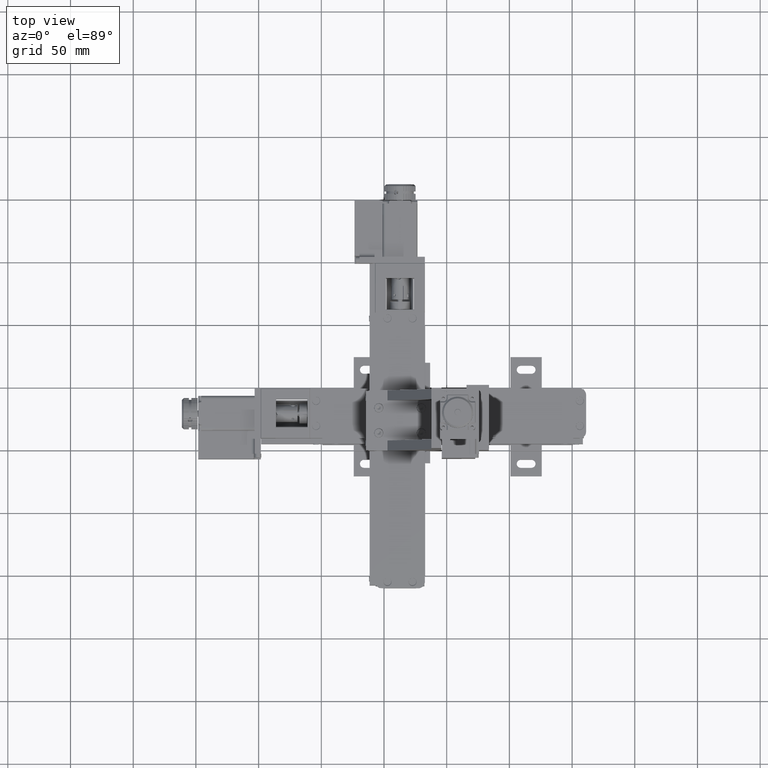
[diagram: clean part render]
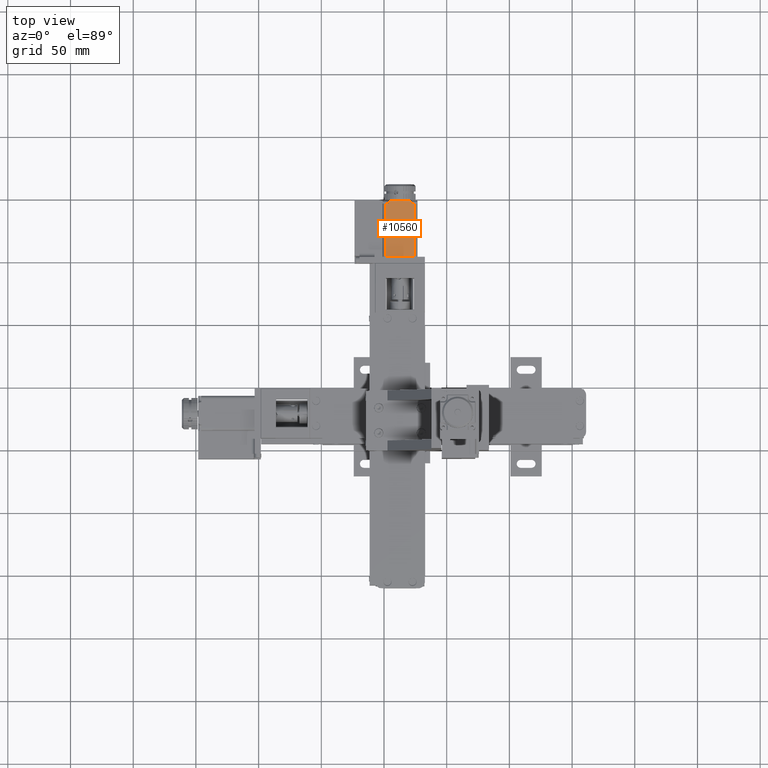
[diagram: same view with one face highlighted and labeled with its STEP entity id]
A machine part, top view. The second image highlights one B-rep face of the part: STEP entity #10560.
In plain terms, the highlighted planar face has unit normal (0, 0, 1).
Its self-contained STEP definition (entity closure, byte-faithful):
#4720=PLANE('',#124171);
#10560=ADVANCED_FACE('',(#17322),#4720,.T.);
#17322=FACE_OUTER_BOUND('',#24533,.T.);
#24533=EDGE_LOOP('',(#55692,#55693,#55694,#55695,#55696,#55697,#55698,#55699,
#55700,#55701));
#55692=ORIENTED_EDGE('',*,*,#80595,.F.);
#55693=ORIENTED_EDGE('',*,*,#80597,.T.);
#55694=ORIENTED_EDGE('',*,*,#80598,.T.);
#55695=ORIENTED_EDGE('',*,*,#80433,.F.);
#55696=ORIENTED_EDGE('',*,*,#80466,.T.);
#55697=ORIENTED_EDGE('',*,*,#80505,.F.);
#55698=ORIENTED_EDGE('',*,*,#80442,.F.);
#55699=ORIENTED_EDGE('',*,*,#80506,.F.);
#55700=ORIENTED_EDGE('',*,*,#80480,.T.);
#55701=ORIENTED_EDGE('',*,*,#80439,.F.);
#80433=EDGE_CURVE('',#114656,#114657,#95291,.T.);
#80439=EDGE_CURVE('',#114666,#114667,#95297,.T.);
#80442=EDGE_CURVE('',#114671,#114668,#95300,.T.);
#80466=EDGE_CURVE('',#114656,#114705,#95324,.T.);
#80480=EDGE_CURVE('',#114712,#114667,#95334,.T.);
#80505=EDGE_CURVE('',#114668,#114705,#95352,.T.);
#80506=EDGE_CURVE('',#114712,#114671,#95353,.T.);
#80595=EDGE_CURVE('',#114768,#114666,#95398,.T.);
#80597=EDGE_CURVE('',#114768,#114769,#95399,.T.);
#80598=EDGE_CURVE('',#114769,#114657,#95400,.T.);
#95291=B_SPLINE_CURVE_WITH_KNOTS('',1,(#215941,#215942),.UNSPECIFIED.,.F.,
 .F.,(2,2),(0.,2.6),.UNSPECIFIED.);
#95297=B_SPLINE_CURVE_WITH_KNOTS('',1,(#215953,#215954),.UNSPECIFIED.,.F.,
 .F.,(2,2),(0.,2.5999999999999),.UNSPECIFIED.);
#95300=B_SPLINE_CURVE_WITH_KNOTS('',1,(#215959,#215960),.UNSPECIFIED.,.F.,
 .F.,(2,2),(0.,16.8),.UNSPECIFIED.);
#95324=B_SPLINE_CURVE_WITH_KNOTS('',1,(#216007,#216008),.UNSPECIFIED.,.F.,
 .F.,(2,2),(-1.40000000000001,0.),.UNSPECIFIED.);
#95334=B_SPLINE_CURVE_WITH_KNOTS('',1,(#216039,#216040),.UNSPECIFIED.,.F.,
 .F.,(2,2),(-1.40000000000001,0.),.UNSPECIFIED.);
#95352=B_SPLINE_CURVE_WITH_KNOTS('',1,(#216096,#216097),.UNSPECIFIED.,.F.,
 .F.,(2,2),(0.,0.707106781186548),.UNSPECIFIED.);
#95353=B_SPLINE_CURVE_WITH_KNOTS('',1,(#216098,#216099),.UNSPECIFIED.,.F.,
 .F.,(2,2),(0.,0.707106781186548),.UNSPECIFIED.);
#95398=B_SPLINE_CURVE_WITH_KNOTS('',1,(#216344,#216345),.UNSPECIFIED.,.F.,
 .F.,(2,2),(0.,42.6),.UNSPECIFIED.);
#95399=B_SPLINE_CURVE_WITH_KNOTS('',1,(#216349,#216350),.UNSPECIFIED.,.F.,
 .F.,(2,2),(0.,23.),.UNSPECIFIED.);
#95400=B_SPLINE_CURVE_WITH_KNOTS('',1,(#216351,#216352),.UNSPECIFIED.,.F.,
 .F.,(2,2),(0.,42.600000000001),.UNSPECIFIED.);
#114656=VERTEX_POINT('',#169650);
#114657=VERTEX_POINT('',#169651);
#114666=VERTEX_POINT('',#169660);
#114667=VERTEX_POINT('',#169661);
#114668=VERTEX_POINT('',#169662);
#114671=VERTEX_POINT('',#169665);
#114705=VERTEX_POINT('',#169699);
#114712=VERTEX_POINT('',#169706);
#114768=VERTEX_POINT('',#169762);
#114769=VERTEX_POINT('',#169763);
#124171=AXIS2_PLACEMENT_3D('',#150390,#130346,$);
#130346=DIRECTION('',(0.,0.,1.));
#150390=CARTESIAN_POINT('',(26.6760922200121,98.5800043659448,81.9990205352451));
#169650=CARTESIAN_POINT('',(21.6560922200121,145.750004365946,81.9990205352469));
#169651=CARTESIAN_POINT('',(24.2560922200121,145.750004365946,81.9990205352468));
#169660=CARTESIAN_POINT('',(1.25609222001206,145.750004365946,81.9990205352473));
#169661=CARTESIAN_POINT('',(3.85609222001197,145.750004365946,81.9990205352473));
#169662=CARTESIAN_POINT('',(21.1560922200121,147.650004365946,81.9990205352469));
#169665=CARTESIAN_POINT('',(4.35609222001206,147.650004365946,81.9990205352473));
#169699=CARTESIAN_POINT('',(21.6560922200121,147.150004365946,81.9990205352469));
#169706=CARTESIAN_POINT('',(3.85609222001206,147.150004365946,81.9990205352473));
#169762=CARTESIAN_POINT('',(1.25609222001127,103.150004365946,81.9990205352457));
#169763=CARTESIAN_POINT('',(24.2560922200113,103.150004365945,81.9990205352453));
#215941=CARTESIAN_POINT('',(21.6560922200121,145.750004365946,81.9990205352469));
#215942=CARTESIAN_POINT('',(24.2560922200121,145.750004365946,81.9990205352468));
#215953=CARTESIAN_POINT('',(1.25609222001206,145.750004365946,81.9990205352473));
#215954=CARTESIAN_POINT('',(3.85609222001197,145.750004365946,81.9990205352473));
#215959=CARTESIAN_POINT('',(4.35609222001206,147.650004365946,81.9990205352473));
#215960=CARTESIAN_POINT('',(21.1560922200121,147.650004365946,81.9990205352469));
#216007=CARTESIAN_POINT('',(21.6560922200121,145.750004365946,81.9990205352469));
#216008=CARTESIAN_POINT('',(21.6560922200121,147.150004365946,81.9990205352469));
#216039=CARTESIAN_POINT('',(3.85609222001206,147.150004365946,81.9990205352473));
#216040=CARTESIAN_POINT('',(3.85609222001197,145.750004365946,81.9990205352473));
#216096=CARTESIAN_POINT('',(21.1560922200121,147.650004365946,81.9990205352469));
#216097=CARTESIAN_POINT('',(21.6560922200121,147.150004365946,81.9990205352469));
#216098=CARTESIAN_POINT('',(3.85609222001206,147.150004365946,81.9990205352473));
#216099=CARTESIAN_POINT('',(4.35609222001206,147.650004365946,81.9990205352473));
#216344=CARTESIAN_POINT('',(1.25609222001127,103.150004365946,81.9990205352457));
#216345=CARTESIAN_POINT('',(1.25609222001206,145.750004365946,81.9990205352473));
#216349=CARTESIAN_POINT('',(1.25609222001127,103.150004365946,81.9990205352457));
#216350=CARTESIAN_POINT('',(24.2560922200113,103.150004365945,81.9990205352453));
#216351=CARTESIAN_POINT('',(24.2560922200113,103.150004365945,81.9990205352453));
#216352=CARTESIAN_POINT('',(24.2560922200121,145.750004365946,81.9990205352468));